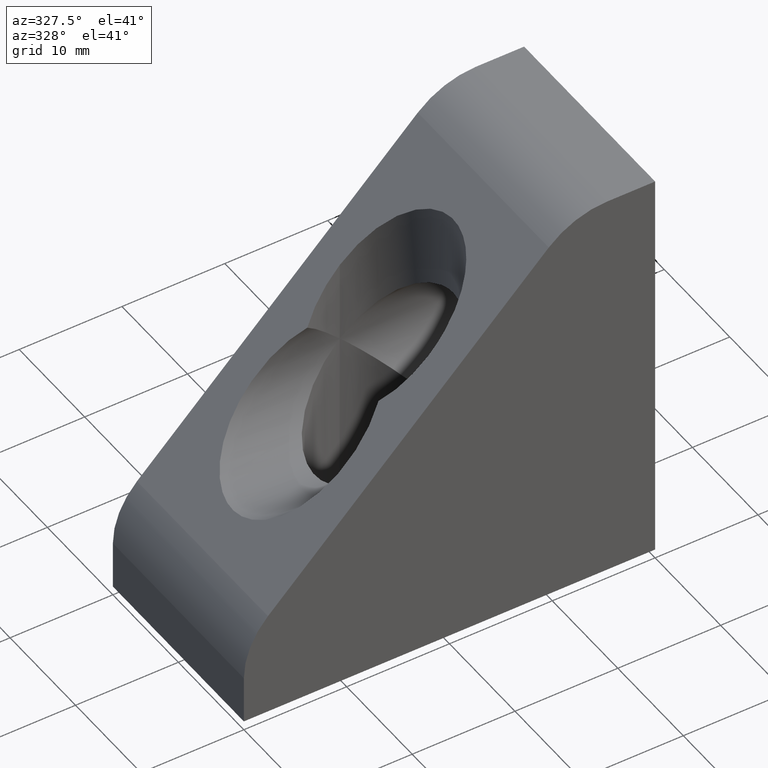
[diagram: clean part render]
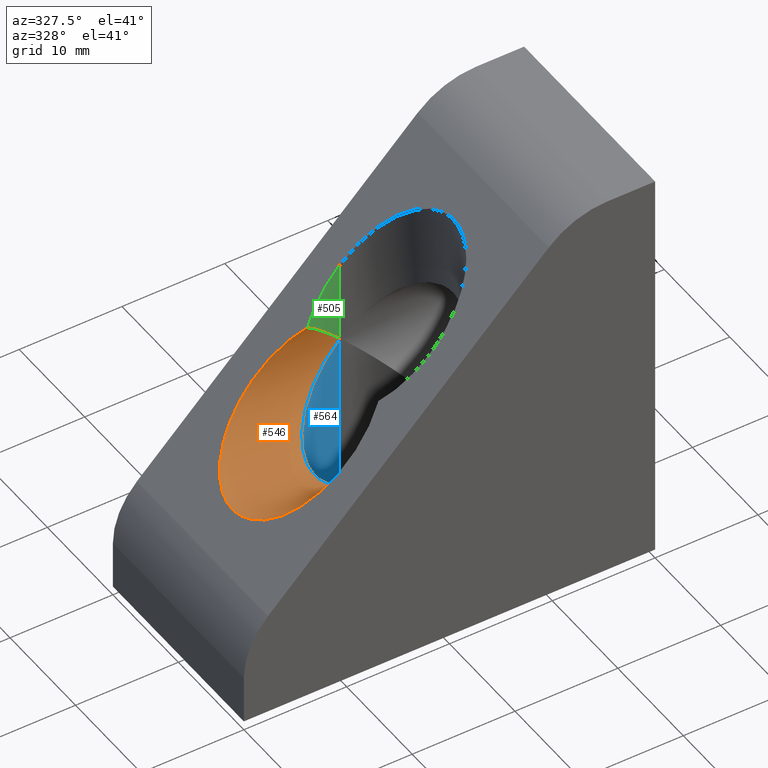
[diagram: same view with three faces highlighted in distinct colors, each labeled with its STEP entity id]
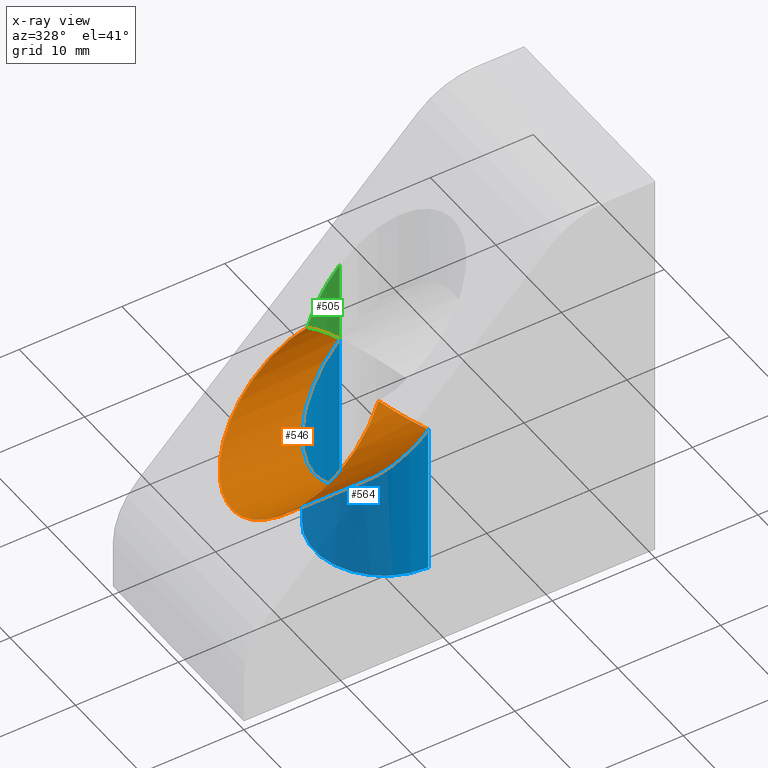
[diagram: x-ray of the same camera — body ghosted, the three highlighted faces saturated]
A machine part, auxiliary view with three faces highlighted in distinct colors.
The next image is the same camera in x-ray (body ghosted, the three faces saturated) — at least one of them is partly hidden behind the body in this view.
Their STEP definitions:

[orange] entity #546 — the highlighted cylindrical surface (partial cylindrical patch) has radius 6.75 mm, axis along (1, 0, 0).
#9=CARTESIAN_POINT('',(-19.999999999999996,6.749999999999993,20.0));
#10=VERTEX_POINT('',#9);
#156=CARTESIAN_POINT('',(-19.999999999999996,-6.750000000000014,20.0));
#157=VERTEX_POINT('',#156);
#257=CARTESIAN_POINT('',(-23.999999999999996,-5.437140792732894,24.0));
#258=VERTEX_POINT('',#257);
#274=CARTESIAN_POINT('',(-19.999999999999996,-6.750000000000014,20.0));
#275=CARTESIAN_POINT('',(-21.451571303647828,-6.750000000000014,21.451571303647832));
#276=CARTESIAN_POINT('',(-22.830755918722364,-6.297331194894571,22.830755918722360));
#277=CARTESIAN_POINT('',(-23.999999999999996,-5.437140792732894,24.0));
#285=(BOUNDED_CURVE()B_SPLINE_CURVE(3,(#274,#275,#276,#277),.UNSPECIFIED.,.F.,.U.)B_SPLINE_CURVE_WITH_KNOTS((4,4),(1.570796326794897,2.205069974917393),.UNSPECIFIED.)CURVE()GEOMETRIC_REPRESENTATION_ITEM()RATIONAL_B_SPLINE_CURVE((1.0,0.966754790301428,0.966754790301428,1.0))REPRESENTATION_ITEM(''));
#286=EDGE_CURVE('',#157,#258,#285,.T.);
#473=CARTESIAN_POINT('',(-23.999999999999996,5.437140792732880,24.0));
#474=VERTEX_POINT('',#473);
#489=CARTESIAN_POINT('',(-23.999999999999996,5.437140792732880,24.0));
#490=CARTESIAN_POINT('',(-22.830755918722364,6.297331194894557,22.830755918722367));
#491=CARTESIAN_POINT('',(-21.451571303647828,6.749999999999993,21.451571303647832));
#492=CARTESIAN_POINT('',(-19.999999999999996,6.749999999999993,20.0));
#500=(BOUNDED_CURVE()B_SPLINE_CURVE(3,(#489,#490,#491,#492),.UNSPECIFIED.,.F.,.U.)B_SPLINE_CURVE_WITH_KNOTS((4,4),(4.078115332262193,4.712388980384691),.UNSPECIFIED.)CURVE()GEOMETRIC_REPRESENTATION_ITEM()RATIONAL_B_SPLINE_CURVE((1.0,0.966754790301428,0.966754790301428,1.0))REPRESENTATION_ITEM(''));
#501=EDGE_CURVE('',#474,#10,#500,.T.);
#506=CARTESIAN_POINT('',(-34.750002994728241,-1.065814E-014,20.0));
#507=DIRECTION('',(1.0,0.0,0.0));
#508=DIRECTION('',(0.0,0.0,1.0));
#509=AXIS2_PLACEMENT_3D('',#506,#507,#508);
#510=CYLINDRICAL_SURFACE('',#509,6.749999999999997);
#511=CARTESIAN_POINT('',(-23.999999999999996,-5.437140792732894,24.0));
#512=CARTESIAN_POINT('',(-29.100047709901933,-9.189147889344042,18.899952290098049));
#513=CARTESIAN_POINT('',(-34.749999999999986,-6.331511975531321,13.249999999999995));
#514=CARTESIAN_POINT('',(-34.749999999999986,0.0,13.250000000000000));
#515=CARTESIAN_POINT('',(-34.750000000000000,6.331511975531316,13.250000000000000));
#516=CARTESIAN_POINT('',(-29.100047709901933,9.189147889344033,18.899952290098049));
#517=CARTESIAN_POINT('',(-23.999999999999996,5.437140792732880,24.0));
#525=(BOUNDED_CURVE()B_SPLINE_CURVE(3,(#511,#512,#513,#514,#515,#516,#517),.UNSPECIFIED.,.F.,.U.)B_SPLINE_CURVE_WITH_KNOTS((4,3,4),(0.936522678672401,3.141592653589793,5.346662628507185),.UNSPECIFIED.)CURVE()GEOMETRIC_REPRESENTATION_ITEM()RATIONAL_B_SPLINE_CURVE((1.0,0.634223644616147,0.634223644616147,1.0,0.634223644616147,0.634223644616147,1.0))REPRESENTATION_ITEM(''));
#526=EDGE_CURVE('',#258,#474,#525,.T.);
#527=ORIENTED_EDGE('',*,*,#526,.F.);
#528=ORIENTED_EDGE('',*,*,#286,.F.);
#529=CARTESIAN_POINT('',(-19.999999999999996,6.749999999999993,20.0));
#530=CARTESIAN_POINT('',(-33.500000000000000,6.749999999999996,6.500000000000004));
#531=CARTESIAN_POINT('',(-33.500000000000000,-6.750000000000018,6.500000000000004));
#532=CARTESIAN_POINT('',(-19.999999999999996,-6.750000000000014,20.0));
#540=(BOUNDED_CURVE()B_SPLINE_CURVE(3,(#529,#530,#531,#532),.UNSPECIFIED.,.F.,.U.)B_SPLINE_CURVE_WITH_KNOTS((4,4),(4.712388980384691,7.853981633974483),.UNSPECIFIED.)CURVE()GEOMETRIC_REPRESENTATION_ITEM()RATIONAL_B_SPLINE_CURVE((1.0,0.333333333333333,0.333333333333333,1.0))REPRESENTATION_ITEM(''));
#541=EDGE_CURVE('',#10,#157,#540,.T.);
#542=ORIENTED_EDGE('',*,*,#541,.F.);
#543=ORIENTED_EDGE('',*,*,#501,.F.);
#544=EDGE_LOOP('',(#527,#528,#542,#543));
#545=FACE_OUTER_BOUND('',#544,.T.);
#546=ADVANCED_FACE('',(#545),#510,.F.);

[blue] entity #564 — the highlighted cylindrical surface (partial cylindrical patch) has radius 6.75 mm, axis along (0, 0, -1).
#9=CARTESIAN_POINT('',(-19.999999999999996,6.749999999999993,20.0));
#10=VERTEX_POINT('',#9);
#156=CARTESIAN_POINT('',(-19.999999999999996,-6.750000000000014,20.0));
#157=VERTEX_POINT('',#156);
#173=CARTESIAN_POINT('',(-19.999999999999996,6.750000000000000,4.999999999999997));
#174=VERTEX_POINT('',#173);
#175=CARTESIAN_POINT('',(-19.999999999999996,6.749999999999998,20.0));
#176=DIRECTION('',(0.0,0.0,-1.0));
#177=VECTOR('',#176,15.000000000000004);
#178=LINE('',#175,#177);
#179=EDGE_CURVE('',#10,#174,#178,.T.);
#181=CARTESIAN_POINT('',(-19.999999999999996,-6.750000000000000,4.999999999999997));
#182=VERTEX_POINT('',#181);
#190=CARTESIAN_POINT('',(-19.999999999999996,-6.750000000000000,20.0));
#191=DIRECTION('',(0.0,0.0,-1.0));
#192=VECTOR('',#191,15.000000000000004);
#193=LINE('',#190,#192);
#194=EDGE_CURVE('',#157,#182,#193,.T.);
#529=CARTESIAN_POINT('',(-19.999999999999996,6.749999999999993,20.0));
#530=CARTESIAN_POINT('',(-33.500000000000000,6.749999999999996,6.500000000000004));
#531=CARTESIAN_POINT('',(-33.500000000000000,-6.750000000000018,6.500000000000004));
#532=CARTESIAN_POINT('',(-19.999999999999996,-6.750000000000014,20.0));
#540=(BOUNDED_CURVE()B_SPLINE_CURVE(3,(#529,#530,#531,#532),.UNSPECIFIED.,.F.,.U.)B_SPLINE_CURVE_WITH_KNOTS((4,4),(4.712388980384691,7.853981633974483),.UNSPECIFIED.)CURVE()GEOMETRIC_REPRESENTATION_ITEM()RATIONAL_B_SPLINE_CURVE((1.0,0.333333333333333,0.333333333333333,1.0))REPRESENTATION_ITEM(''));
#541=EDGE_CURVE('',#10,#157,#540,.T.);
#547=CARTESIAN_POINT('',(-20.000000000000004,0.0,20.000000010000001));
#548=DIRECTION('',(0.0,0.0,-1.0));
#549=DIRECTION('',(1.0,0.0,0.0));
#550=AXIS2_PLACEMENT_3D('',#547,#548,#549);
#551=CYLINDRICAL_SURFACE('',#550,6.749999999999997);
#552=ORIENTED_EDGE('',*,*,#179,.F.);
#553=ORIENTED_EDGE('',*,*,#541,.T.);
#554=ORIENTED_EDGE('',*,*,#194,.T.);
#555=CARTESIAN_POINT('',(-19.999999999999996,0.0,4.999999999999997));
#556=DIRECTION('',(0.0,0.0,1.0));
#557=DIRECTION('',(0.0,-1.0,0.0));
#558=AXIS2_PLACEMENT_3D('',#555,#556,#557);
#559=CIRCLE('',#558,6.749999999999997);
#560=EDGE_CURVE('',#174,#182,#559,.T.);
#561=ORIENTED_EDGE('',*,*,#560,.F.);
#562=EDGE_LOOP('',(#552,#553,#554,#561));
#563=FACE_OUTER_BOUND('',#562,.T.);
#564=ADVANCED_FACE('',(#563),#551,.F.);

[green] entity #505 — the highlighted cylindrical surface (partial cylindrical patch) has radius 6.75 mm, axis along (0, 0, -1).
#9=CARTESIAN_POINT('',(-19.999999999999996,6.749999999999993,20.0));
#10=VERTEX_POINT('',#9);
#204=CARTESIAN_POINT('',(-19.999999999999996,6.749999999999998,28.0));
#205=VERTEX_POINT('',#204);
#222=CARTESIAN_POINT('',(-19.999999999999996,6.749999999999998,28.0));
#223=DIRECTION('',(0.0,0.0,-1.0));
#224=VECTOR('',#223,8.0);
#225=LINE('',#222,#224);
#226=EDGE_CURVE('',#205,#10,#225,.T.);
#467=CARTESIAN_POINT('',(-19.999999999999996,0.0,28.000000010000001));
#468=DIRECTION('',(0.0,0.0,-1.0));
#469=DIRECTION('',(0.0,-1.0,0.0));
#470=AXIS2_PLACEMENT_3D('',#467,#468,#469);
#471=CYLINDRICAL_SURFACE('',#470,6.749999999999997);
#472=ORIENTED_EDGE('',*,*,#226,.F.);
#473=CARTESIAN_POINT('',(-23.999999999999996,5.437140792732880,24.0));
#474=VERTEX_POINT('',#473);
#475=CARTESIAN_POINT('',(-23.999999999999996,5.437140792732880,24.0));
#476=CARTESIAN_POINT('',(-22.830755918722357,6.297331194894561,25.169244081277633));
#477=CARTESIAN_POINT('',(-21.451571303647828,6.749999999999998,26.548428696352165));
#478=CARTESIAN_POINT('',(-19.999999999999996,6.749999999999998,28.0));
#486=(BOUNDED_CURVE()B_SPLINE_CURVE(3,(#475,#476,#477,#478),.UNSPECIFIED.,.F.,.U.)B_SPLINE_CURVE_WITH_KNOTS((4,4),(0.936522678672400,1.570796326794897),.UNSPECIFIED.)CURVE()GEOMETRIC_REPRESENTATION_ITEM()RATIONAL_B_SPLINE_CURVE((1.0,0.966754790301428,0.966754790301428,1.0))REPRESENTATION_ITEM(''));
#487=EDGE_CURVE('',#474,#205,#486,.T.);
#488=ORIENTED_EDGE('',*,*,#487,.F.);
#489=CARTESIAN_POINT('',(-23.999999999999996,5.437140792732880,24.0));
#490=CARTESIAN_POINT('',(-22.830755918722364,6.297331194894557,22.830755918722367));
#491=CARTESIAN_POINT('',(-21.451571303647828,6.749999999999993,21.451571303647832));
#492=CARTESIAN_POINT('',(-19.999999999999996,6.749999999999993,20.0));
#500=(BOUNDED_CURVE()B_SPLINE_CURVE(3,(#489,#490,#491,#492),.UNSPECIFIED.,.F.,.U.)B_SPLINE_CURVE_WITH_KNOTS((4,4),(4.078115332262193,4.712388980384691),.UNSPECIFIED.)CURVE()GEOMETRIC_REPRESENTATION_ITEM()RATIONAL_B_SPLINE_CURVE((1.0,0.966754790301428,0.966754790301428,1.0))REPRESENTATION_ITEM(''));
#501=EDGE_CURVE('',#474,#10,#500,.T.);
#502=ORIENTED_EDGE('',*,*,#501,.T.);
#503=EDGE_LOOP('',(#472,#488,#502));
#504=FACE_OUTER_BOUND('',#503,.T.);
#505=ADVANCED_FACE('',(#504),#471,.F.);